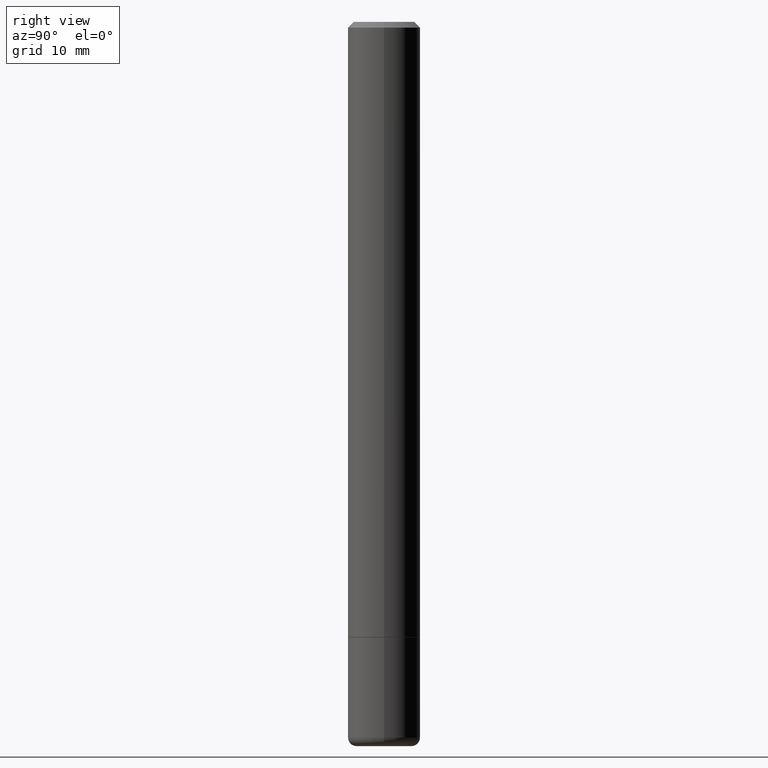
[diagram: clean part render]
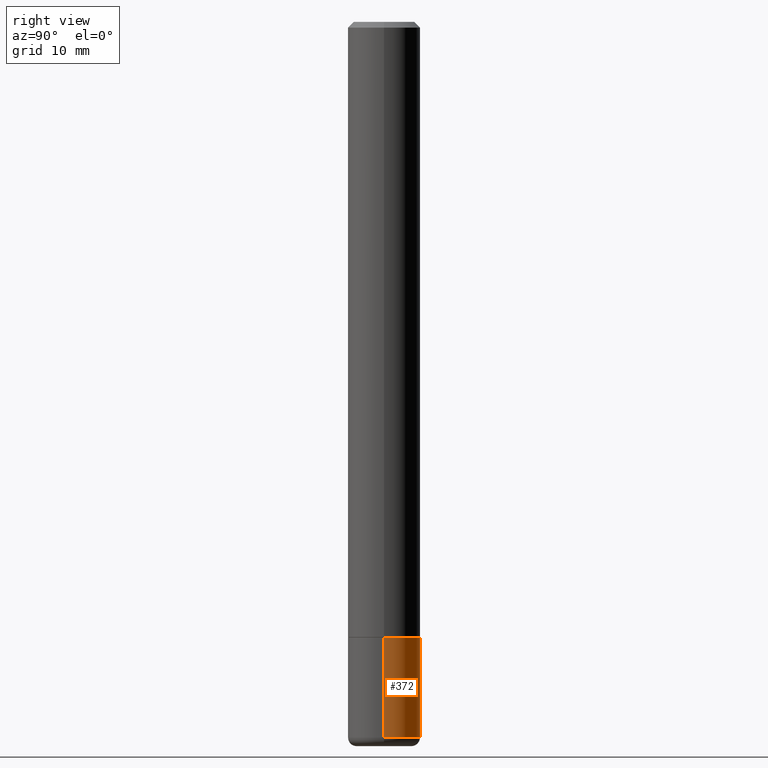
[diagram: same view with one face highlighted and labeled with its STEP entity id]
A machine part, right view. The second image highlights one B-rep face of the part: STEP entity #372.
In plain terms, the highlighted cylindrical surface (edge-blend (fillet) strip) has radius 3.175 mm, axis along (-0, 0, 1).
Its self-contained STEP definition (entity closure, byte-faithful):
#10 = EDGE_CURVE ( 'NONE', #141, #55, #275, .T. ) ;
#21 = ORIENTED_EDGE ( 'NONE', *, *, #249, .F. ) ;
#28 = VERTEX_POINT ( 'NONE', #307 ) ;
#40 = EDGE_CURVE ( 'NONE', #398, #141, #415, .T. ) ;
#45 = AXIS2_PLACEMENT_3D ( 'NONE', #455, #120, #306 ) ;
#48 = DIRECTION ( 'NONE',  ( 1.000000000000000000, -6.982962677686264344E-15, 0.000000000000000000 ) ) ;
#55 = VERTEX_POINT ( 'NONE', #85 ) ;
#65 = DIRECTION ( 'NONE',  ( 1.000000000000000000, -6.982962677686266711E-15, 4.876176775795935232E-29 ) ) ;
#67 = ORIENTED_EDGE ( 'NONE', *, *, #210, .F. ) ;
#77 = EDGE_LOOP ( 'NONE', ( #316, #242, #21, #67 ) ) ;
#85 = CARTESIAN_POINT ( 'NONE',  ( -0.1249999999999995559, -7.133501950465667053E-15, -2.125000000000000000 ) ) ;
#87 = CARTESIAN_POINT ( 'NONE',  ( 5.196621213143415268E-29, -7.419397845041685201E-15, -2.125000000000000000 ) ) ;
#99 = CARTESIAN_POINT ( 'NONE',  ( 0.1249999999999997918, -8.728703347107818597E-16, 6.095220969744909231E-30 ) ) ;
#120 = DIRECTION ( 'NONE',  ( -2.445468806185136597E-29, 3.491481338843145583E-15, 1.000000000000000000 ) ) ;
#126 = DIRECTION ( 'NONE',  ( -2.445468806185136597E-29, 3.491481338843145583E-15, 1.000000000000000000 ) ) ;
#141 = VERTEX_POINT ( 'NONE', #456 ) ;
#191 = DIRECTION ( 'NONE',  ( -2.445468806185136877E-29, 3.491481338843145188E-15, 1.000000000000000000 ) ) ;
#210 = EDGE_CURVE ( 'NONE', #398, #28, #462, .T. ) ;
#225 = VECTOR ( 'NONE', #356, 39.37007874015748143 ) ;
#242 = ORIENTED_EDGE ( 'NONE', *, *, #10, .T. ) ;
#249 = EDGE_CURVE ( 'NONE', #28, #55, #309, .T. ) ;
#258 = FACE_OUTER_BOUND ( 'NONE', #77, .T. ) ;
#274 = AXIS2_PLACEMENT_3D ( 'NONE', #87, #126, #48 ) ;
#275 = LINE ( 'NONE', #454, #361 ) ;
#306 = DIRECTION ( 'NONE',  ( 1.000000000000000000, -6.982962677686261189E-15, 0.000000000000000000 ) ) ;
#307 = CARTESIAN_POINT ( 'NONE',  ( 0.1249999999999995559, -8.292268179752463807E-15, -2.125000000000000000 ) ) ;
#309 = CIRCLE ( 'NONE', #274, 0.1249999999999995559 ) ;
#316 = ORIENTED_EDGE ( 'NONE', *, *, #40, .T. ) ;
#340 = CARTESIAN_POINT ( 'NONE',  ( 0.000000000000000000, 0.000000000000000000, 0.000000000000000000 ) ) ;
#356 = DIRECTION ( 'NONE',  ( -2.445468806185136877E-29, 3.491481338843145188E-15, 1.000000000000000000 ) ) ;
#359 = AXIS2_PLACEMENT_3D ( 'NONE', #340, #445, #65 ) ;
#361 = VECTOR ( 'NONE', #191, 39.37007874015748143 ) ;
#372 = ADVANCED_FACE ( 'NONE', ( #258 ), #403, .T. ) ;
#398 = VERTEX_POINT ( 'NONE', #490 ) ;
#403 = CYLINDRICAL_SURFACE ( 'NONE', #359, 0.1249999999999997918 ) ;
#415 = CIRCLE ( 'NONE', #45, 0.1250000000000000278 ) ;
#445 = DIRECTION ( 'NONE',  ( -2.445468806185136597E-29, 3.491481338843145583E-15, 1.000000000000000000 ) ) ;
#454 = CARTESIAN_POINT ( 'NONE',  ( -0.1249999999999997918, 8.881784197001237532E-16, -6.148668862818622418E-30 ) ) ;
#455 = CARTESIAN_POINT ( 'NONE',  ( 6.040310744756052718E-29, -8.623962895289896214E-15, -2.470001142308074993 ) ) ;
#456 = CARTESIAN_POINT ( 'NONE',  ( -0.1250000000000000555, -7.133501950465663898E-15, -2.470001142308074993 ) ) ;
#462 = LINE ( 'NONE', #99, #225 ) ;
#490 = CARTESIAN_POINT ( 'NONE',  ( 0.1250000000000000278, -9.496833230000679553E-15, -2.470001142308074993 ) ) ;